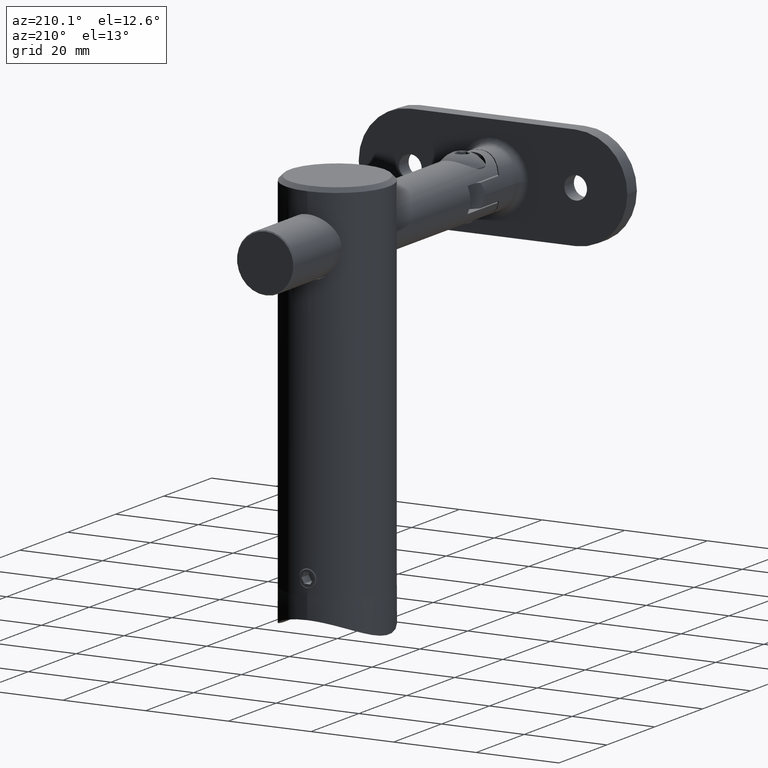
[diagram: clean part render]
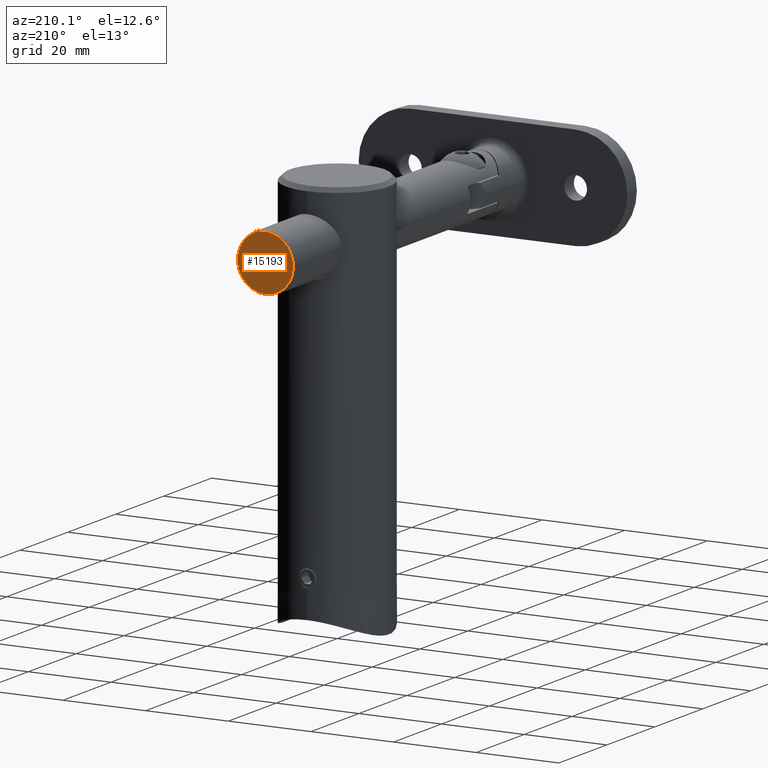
[diagram: same view with one face highlighted and labeled with its STEP entity id]
A machine part, auxiliary view. The second image highlights one B-rep face of the part: STEP entity #15193.
In plain terms, the highlighted planar face has unit normal (0, -1, 0).
Its self-contained STEP definition (entity closure, byte-faithful):
#2654 = DIRECTION ( 'NONE',  ( -0.000000000000000000, -1.000000000000000000, -0.000000000000000000 ) ) ;
#3995 = DIRECTION ( 'NONE',  ( -0.000000000000000000, -1.000000000000000000, -0.000000000000000000 ) ) ;
#4265 = CARTESIAN_POINT ( 'NONE',  ( 8.419446744138058199E-16, 0.000000000000000000, -6.750000000000006217 ) ) ;
#4317 = DIRECTION ( 'NONE',  ( 0.000000000000000000, -0.000000000000000000, 1.000000000000000000 ) ) ;
#5003 = VERTEX_POINT ( 'NONE', #4265 ) ;
#5044 = EDGE_CURVE ( 'NONE', #5003, #5737, #15254, .T. ) ;
#5737 = VERTEX_POINT ( 'NONE', #6128 ) ;
#5950 = CARTESIAN_POINT ( 'NONE',  ( 0.000000000000000000, 0.000000000000000000, 0.000000000000000000 ) ) ;
#6023 = DIRECTION ( 'NONE',  ( 0.000000000000000000, 0.000000000000000000, 1.000000000000000000 ) ) ;
#6128 = CARTESIAN_POINT ( 'NONE',  ( 0.000000000000000000, 0.000000000000000000, 6.750000000000006217 ) ) ;
#6223 = EDGE_CURVE ( 'NONE', #5737, #5003, #14259, .T. ) ;
#7308 = DIRECTION ( 'NONE',  ( 0.000000000000000000, 1.000000000000000000, 0.000000000000000000 ) ) ;
#8076 = AXIS2_PLACEMENT_3D ( 'NONE', #14927, #3995, #15061 ) ;
#9147 = AXIS2_PLACEMENT_3D ( 'NONE', #5950, #2654, #6023 ) ;
#9560 = ORIENTED_EDGE ( 'NONE', *, *, #5044, .T. ) ;
#12332 = PLANE ( 'NONE',  #15971 ) ;
#12842 = FACE_OUTER_BOUND ( 'NONE', #20496, .T. ) ;
#13725 = CARTESIAN_POINT ( 'NONE',  ( 0.000000000000000000, 0.000000000000000000, 0.000000000000000000 ) ) ;
#14259 = CIRCLE ( 'NONE', #8076, 6.750000000000006217 ) ;
#14927 = CARTESIAN_POINT ( 'NONE',  ( 0.000000000000000000, 0.000000000000000000, 0.000000000000000000 ) ) ;
#15061 = DIRECTION ( 'NONE',  ( 0.000000000000000000, 0.000000000000000000, 1.000000000000000000 ) ) ;
#15193 = ADVANCED_FACE ( 'NONE', ( #12842 ), #12332, .F. ) ;
#15254 = CIRCLE ( 'NONE', #9147, 6.750000000000006217 ) ;
#15971 = AXIS2_PLACEMENT_3D ( 'NONE', #13725, #7308, #4317 ) ;
#18833 = ORIENTED_EDGE ( 'NONE', *, *, #6223, .T. ) ;
#20496 = EDGE_LOOP ( 'NONE', ( #18833, #9560 ) ) ;